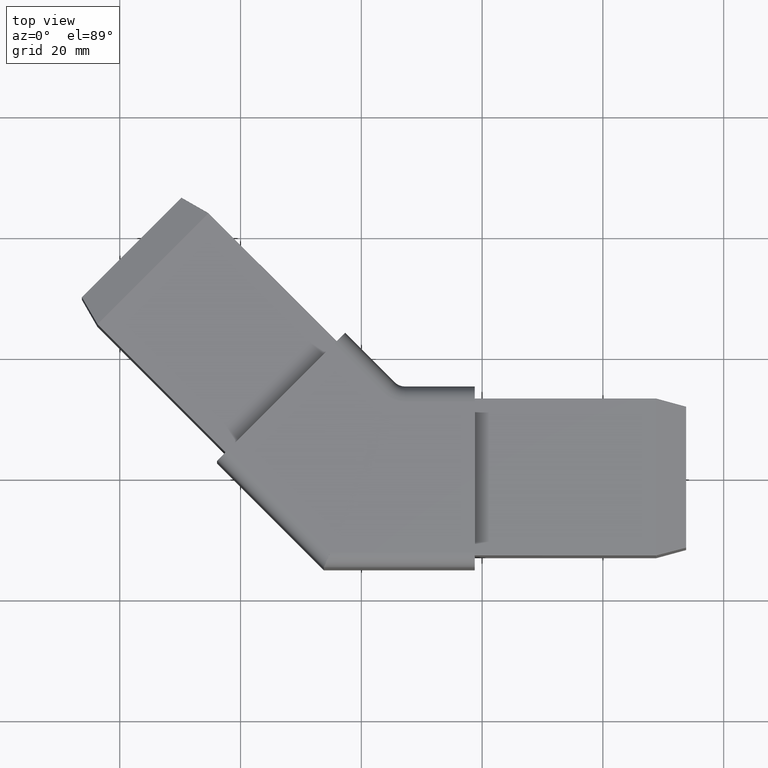
[diagram: clean part render]
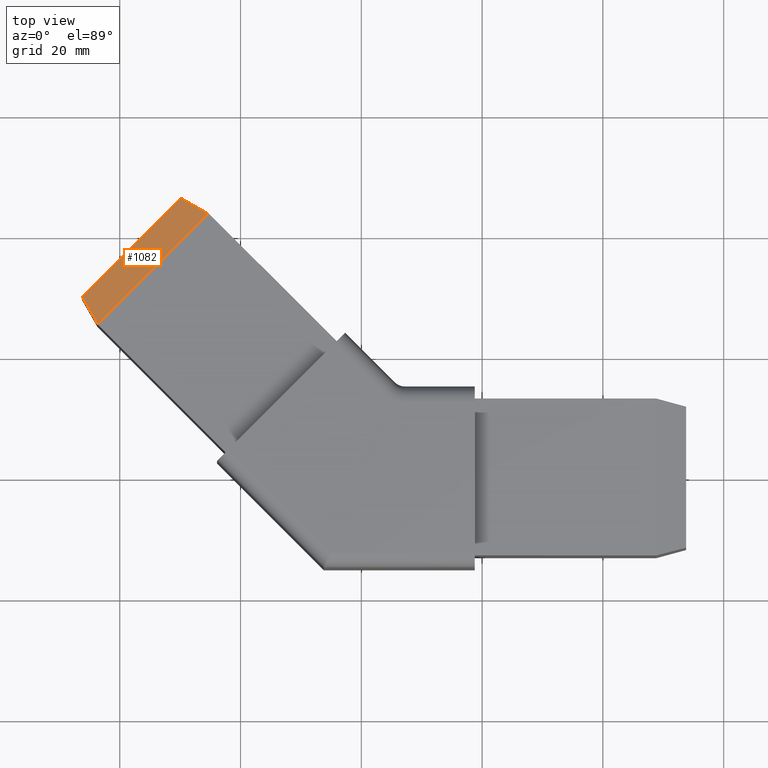
[diagram: same view with one face highlighted and labeled with its STEP entity id]
A machine part, top view. The second image highlights one B-rep face of the part: STEP entity #1082.
In plain terms, the highlighted planar face has unit normal (-0.183, 0.183, 0.9659).
Its self-contained STEP definition (entity closure, byte-faithful):
#51=ELLIPSE('',#1166,0.386370330515627,0.1);
#56=ELLIPSE('',#1173,0.386370330515627,0.1);
#120=FACE_OUTER_BOUND('',#183,.T.);
#183=EDGE_LOOP('',(#763,#764,#765,#766,#767,#768));
#257=LINE('',#1665,#359);
#261=LINE('',#1683,#363);
#265=LINE('',#1697,#367);
#266=LINE('',#1700,#368);
#359=VECTOR('',#1311,10.);
#363=VECTOR('',#1329,10.);
#367=VECTOR('',#1341,10.);
#368=VECTOR('',#1344,10.);
#455=VERTEX_POINT('',#1663);
#456=VERTEX_POINT('',#1664);
#461=VERTEX_POINT('',#1675);
#463=VERTEX_POINT('',#1682);
#469=VERTEX_POINT('',#1696);
#470=VERTEX_POINT('',#1698);
#567=EDGE_CURVE('',#455,#456,#257,.T.);
#573=EDGE_CURVE('',#461,#455,#51,.T.);
#576=EDGE_CURVE('',#463,#456,#261,.T.);
#583=EDGE_CURVE('',#461,#469,#265,.T.);
#584=EDGE_CURVE('',#470,#469,#56,.T.);
#585=EDGE_CURVE('',#463,#470,#266,.T.);
#763=ORIENTED_EDGE('',*,*,#567,.F.);
#764=ORIENTED_EDGE('',*,*,#573,.F.);
#765=ORIENTED_EDGE('',*,*,#583,.T.);
#766=ORIENTED_EDGE('',*,*,#584,.F.);
#767=ORIENTED_EDGE('',*,*,#585,.F.);
#768=ORIENTED_EDGE('',*,*,#576,.T.);
#1048=PLANE('',#1172);
#1082=ADVANCED_FACE('',(#120),#1048,.T.);
#1166=AXIS2_PLACEMENT_3D('',#1677,#1322,#1323);
#1172=AXIS2_PLACEMENT_3D('',#1695,#1339,#1340);
#1173=AXIS2_PLACEMENT_3D('',#1699,#1342,#1343);
#1311=DIRECTION('',(-0.484050172943185,0.838399492950104,-0.250562807085731));
#1322=DIRECTION('center_axis',(0.183012701892219,-0.183012701892219,-0.965925826289068));
#1323=DIRECTION('ref_axis',(0.683012701892219,-0.68301270189222,0.258819045102521));
#1329=DIRECTION('',(-0.707106781186548,-0.707106781186547,-1.04672830578918E-16));
#1339=DIRECTION('center_axis',(-0.183012701892219,0.183012701892219,0.965925826289068));
#1340=DIRECTION('ref_axis',(0.982520050848698,0.,0.186156787897385));
#1341=DIRECTION('',(0.707106781186548,0.707106781186547,1.04672830578918E-16));
#1342=DIRECTION('center_axis',(0.183012701892219,-0.183012701892219,-0.965925826289068));
#1343=DIRECTION('ref_axis',(0.683012701892219,-0.68301270189222,0.258819045102521));
#1344=DIRECTION('',(0.838399492950102,-0.484050172943189,0.250562807085732));
#1663=CARTESIAN_POINT('',(-43.6218139312223,25.3737195972223,27.9999438299322));
#1664=CARTESIAN_POINT('',(-46.2098958700092,29.8564090093525,26.6602540378444));
#1665=CARTESIAN_POINT('',(-46.3995445028562,30.1848900770295,26.5620846817275));
#1675=CARTESIAN_POINT('',(-43.6192960110545,25.3759410564417,28.));
#1677=CARTESIAN_POINT('Origin',(-43.883191854431,25.6398368998181,27.9));
#1682=CARTESIAN_POINT('',(-29.8564090093524,46.2098958700092,26.6602540378444));
#1683=CARTESIAN_POINT('',(-42.6293465173934,33.4369583619683,26.6602540378444));
#1695=CARTESIAN_POINT('Origin',(-40.861579564427,31.6691914090019,27.3301270189222));
#1696=CARTESIAN_POINT('',(-25.3759410564416,43.6192960110546,28.));
#1697=CARTESIAN_POINT('',(-39.0938126114606,29.9014244560356,28.));
#1698=CARTESIAN_POINT('',(-25.3737195972222,43.6218139312223,27.9999438299322));
#1699=CARTESIAN_POINT('Origin',(-25.639836899818,43.883191854431,27.9));
#1700=CARTESIAN_POINT('',(-30.1848900770294,46.3995445028562,26.5620846817275));